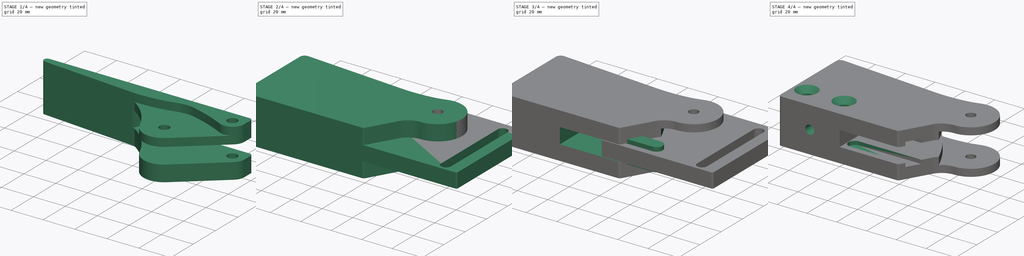
[diagram: build sequence overview — one tinted view per stage of 4, left to right]
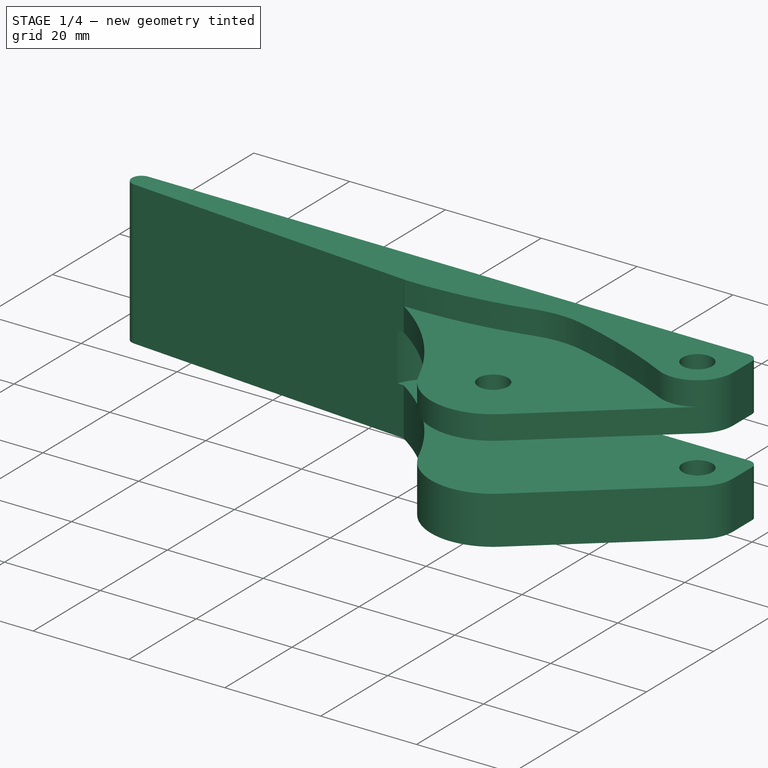
[diagram: stage 1 of 4 — iso view after this stage's code; geometry added in this stage tinted green]
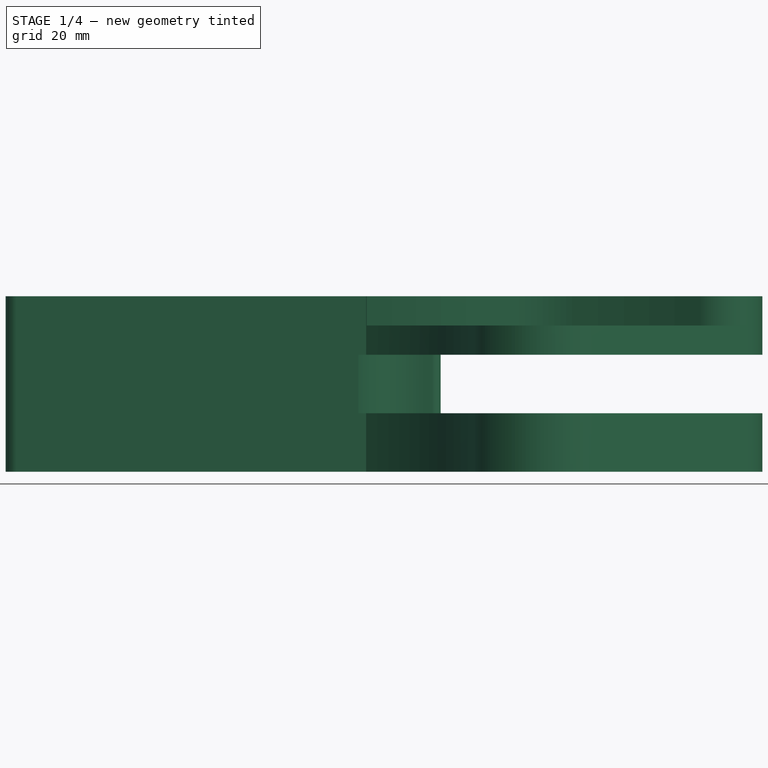
[diagram: stage 1 of 4 — front view after this stage's code; geometry added in this stage tinted green]
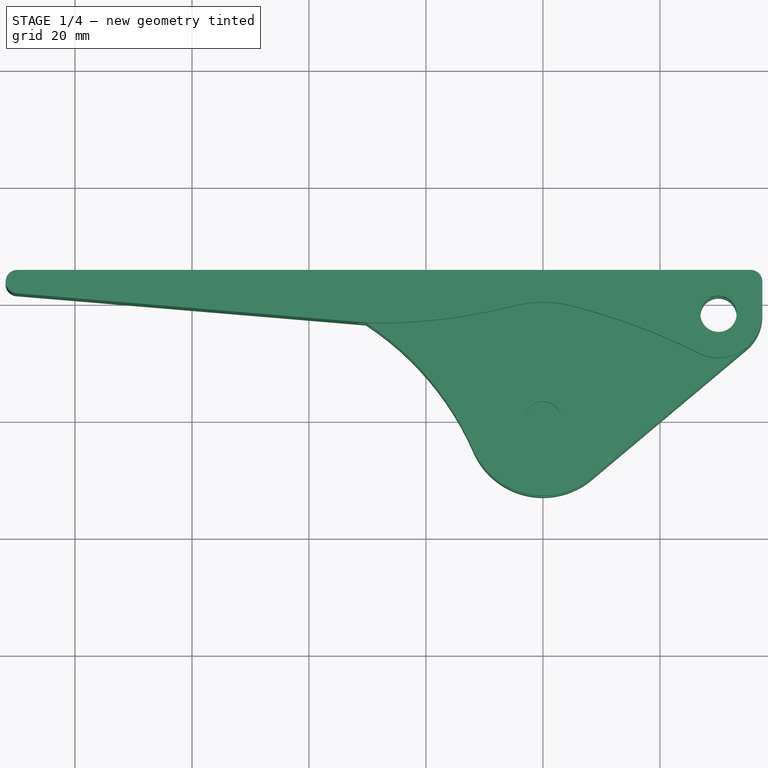
[diagram: stage 1 of 4 — top view after this stage's code; geometry added in this stage tinted green]
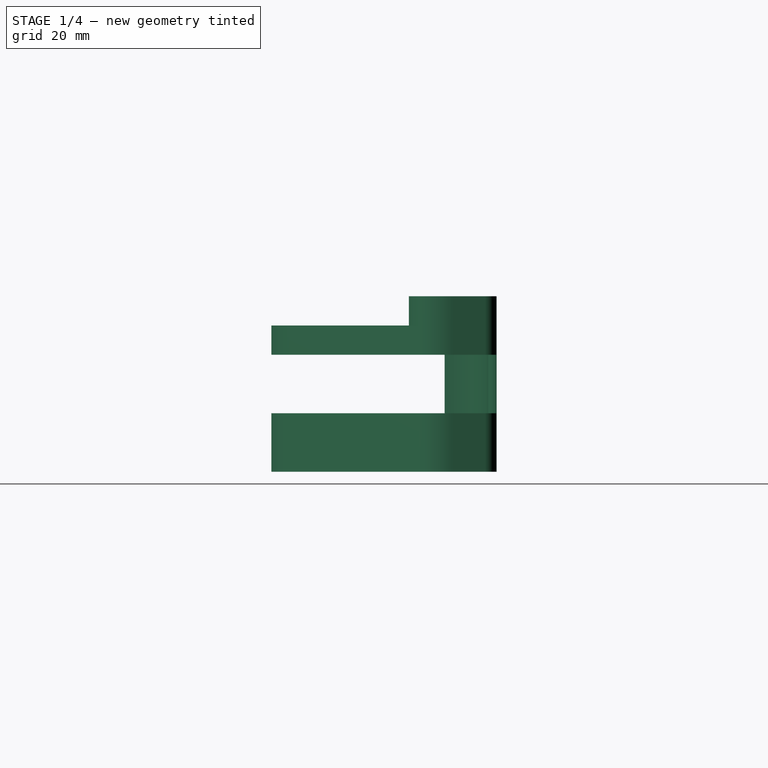
[diagram: stage 1 of 4 — right view after this stage's code; geometry added in this stage tinted green]
FCSTD DOCUMENT  (FreeCAD 0.22R37898 (Git))
Label: direct lever v5
License: All rights reserved
LicenseURL: http://en.wikipedia.org/wiki/All_rights_reserved
objects: Sketcher::SketchObject×13, PartDesign::Pocket×5, PartDesign::Pad×4, PartDesign::Hole×4, PartDesign::SubShapeBinder×3, PartDesign::Body×3, PartDesign::Mirrored×1
note: 46 computed .brp shape members not serialized (recipe doc carries the construction recipe); baked Part::Feature solids carry a one-line shape summary decoded from their .brp

FEATURE [Sketcher::SketchObject] Sketch  label="Master"
  AttachmentSupport = -> [XY_Plane]
  FullyConstrained = true
  MapMode = 5
  expr: .Constraints.slot_length = .Constraints.pin_distance + .Constraints.anchor_offset_y
  expr: .Constraints.slot_top = .Constraints.anchor_y + .Constraints.anchor_offset_y
  sketch-geometry (5):
    g0: LineSegment StartX=-89.9833 StartY=58 StartZ=0 EndX=30.0167 EndY=58 EndZ=0
    g1: Circle CenterX=30.0167 CenterY=58 CenterZ=0 NormalX=0 NormalY=0 NormalZ=1 AngleXU=0 Radius=3.1
    g2: Circle CenterX=0 CenterY=40 CenterZ=0 NormalX=0 NormalY=0 NormalZ=1 AngleXU=0 Radius=3.1
    g3: LineSegment StartX=30.0167 StartY=58 StartZ=0 EndX=30.0167 EndY=5 EndZ=0
    g4: LineSegment StartX=0 StartY=58 StartZ=0 EndX=0 EndY=40 EndZ=0
  constraints (18):
    c: Distance(g2,g0) = 35  'pin_distance'
    c: Diameter(g2) = 6.2
    c: DistanceY(g-1,g2) = 40  'anchor_y'
    c: Diameter(g1) = 6.2
    c: PointOnObject(g1,g3)
    c: PointOnObject(g4,g0)
    c: Coincident(g4,g2)
    c: Perpendicular(g0,g4)
    c: Coincident(g1,g0)
    c: Distance(g4) = 18  'anchor_offset_y'
    c: PointOnObject(g2,g-2)
    c: Distance(g0) = 120  'lever_length'
    c: DistanceY(g-1,g3) = 58  'slot_top'
    c: DistanceY(g3,g3) = 53  'slot_length'
    c: Vertical(g3)
    c: Angle(g0,g-1) = 3e-16  'lever_angle'
    c: DistanceY(g-1,g0) = 58  'pin_y'
    c: Horizontal(g0)
FEATURE [Sketcher::SketchObject] Sketch001  label="Lever sketch"
  AttachmentSupport = -> [XY_Plane]
  FullyConstrained = true
  MapMode = 5
  expr: .Constraints.top_angle = <<Master>>.Constraints.lever_angle
  expr: Constraints[16] = <<Master>>.Constraints.pin_distance
  expr: Constraints[17] = <<Master>>.Constraints.lever_length
  expr: Constraints[20] = <<Master>>.Constraints.anchor_y
  expr: Constraints[21] = <<Master>>.Constraints.pin_y
  sketch-geometry (13):
    g0: ArcOfCircle CenterX=30.0167 CenterY=58 CenterZ=0 NormalX=0 NormalY=0 NormalZ=1 AngleXU=0 Radius=7.5 StartAngle=5.41036 EndAngle=6.28319
    g1: LineSegment StartX=34.8366 StartY=52.2539 StartZ=0 EndX=8.35464 EndY=30.0401 EndZ=0
    g2: LineSegment StartX=35.5167 StartY=65.5 StartZ=0 EndX=-89.8572 EndY=65.5 EndZ=0
    g3: ArcOfCircle CenterX=-89.8572 CenterY=63.5 CenterZ=0 NormalX=0 NormalY=0 NormalZ=1 AngleXU=0 Radius=2 StartAngle=1.5708 EndAngle=4.62884
    g4: ArcOfCircle CenterX=0 CenterY=40 CenterZ=0 NormalX=0 NormalY=0 NormalZ=1 AngleXU=0 Radius=13 StartAngle=3.55441 EndAngle=5.41036
    g5: ArcOfCircle CenterX=-57.7076 CenterY=14.7248 CenterZ=0 NormalX=0 NormalY=0 NormalZ=1 AngleXU=0 Radius=50 StartAngle=0.41282 EndAngle=0.989051
    g6: LineSegment StartX=-30.2334 StartY=56.5 StartZ=0 EndX=-90.0241 EndY=61.507 EndZ=0
    g7: LineSegment StartX=0 StartY=40 StartZ=0 EndX=30.0167 EndY=58 EndZ=0
    g8: Circle CenterX=30.0167 CenterY=58 CenterZ=0 NormalX=0 NormalY=0 NormalZ=1 AngleXU=0 Radius=3.1
    g9: LineSegment StartX=-30.2334 StartY=65.5 StartZ=0 EndX=-30.2334 EndY=56.5 EndZ=0
    g10: LineSegment StartX=-11.9079 StartY=65.5 StartZ=0 EndX=-11.9079 EndY=34.7845 EndZ=0
    g11: ArcOfCircle CenterX=35.5167 CenterY=63.5 CenterZ=0 NormalX=0 NormalY=0 NormalZ=1 AngleXU=0 Radius=2 StartAngle=0 EndAngle=1.5708
    g12: LineSegment StartX=37.5167 StartY=63.5 StartZ=0 EndX=37.5167 EndY=58 EndZ=0
  constraints (34):
    c: Tangent(g6,g3) = 1.5708
    c: Tangent(g3,g2) = -1.5708
    c: Tangent(g5,g4) = 1.5708
    c: Tangent(g4,g1) = 1.5708
    c: Tangent(g1,g0) = 1.5708
    c: Radius(g3) = 2
    c: Coincident(g7,g0)
    c: Coincident(g8,g0)
    c: Diameter(g0) = 15  'tip_diameter'
    c: Coincident(g9,g5)
    c: Coincident(g10,g4)
    c: Parallel(g10,g9)
    c: PointOnObject(g9,g2)
    c: Distance(g9) = 9
    c: Perpendicular(g2,g9)
    c: PointOnObject(g10,g2)
    c: Distance(g7) = 35
    c: Distance(g3,g0) = 120
    c: Diameter(g8) = 6.2
    c: PointOnObject(g7,g-2)
    c: Distance(g-1,g7) = 40
    c: DistanceY(g-1,g0) = 58
    c: Angle(g2,g-1) = 3e-16  'top_angle'
    c: Distance(g6) = 60
    c: Tangent(g11,g2) = -1.5708
    c: Tangent(g12,g0) = 1.5708
    c: Tangent(g12,g11) = 1.5708
    c: Radius(g11) = 2
    c: Perpendicular(g12,g2)
    c: Distance(g12) = 5.5
    c: Coincident(g4,g7)
    c: Radius(g4) = 13
    c: Radius(g5) = 50
    c: Coincident(g6,g5)
FEATURE [PartDesign::Pad] Pad  label="Lever001"
  Direction = (0,0,1)
  Length = 30
  Length2 = 10
  Midplane = true
  Profile = -> Sketch001
  ReferenceAxis = -> Sketch001 [N_Axis]
  Suppressed = false
  Type = 0
FEATURE [Sketcher::SketchObject] Sketch003  label="Carrier pocket sketch"
  AttachmentSupport = -> [XY_Plane]
  ExternalGeometry = -> [Sketch001]
  FullyConstrained = true
  MapMode = 5
  expr: .Constraints.top_length = <<Master>>.Constraints.pin_distance + 20 mm
  expr: Constraints[10] = <<Lever sketch>>.Constraints.top_angle
  sketch-geometry (11):
    g0: LineSegment StartX=-32.4833 StartY=20.5 StartZ=0 EndX=35.5167 EndY=20.5 EndZ=0
    g1: LineSegment StartX=37.5167 StartY=22.5 StartZ=0 EndX=37.5167 EndY=65.5 EndZ=0
    g2: LineSegment StartX=37.5167 StartY=65.5 StartZ=0 EndX=-17.4833 EndY=65.5 EndZ=0
    g3: ArcOfCircle CenterX=35.5167 CenterY=22.5 CenterZ=0 NormalX=0 NormalY=0 NormalZ=1 AngleXU=0 Radius=2 StartAngle=4.71239 EndAngle=6.28319
    g4: GeomPoint X=37.5167 Y=20.5 Z=0
    g5: GeomPoint X=37.5167 Y=65.5 Z=0
    g6: LineSegment StartX=-32.4833 StartY=20.5 StartZ=0 EndX=-32.4833 EndY=52 EndZ=0
    g7: GeomPoint X=-32.4833 Y=65.5 Z=0
    g8: ArcOfCircle CenterX=-18.9833 CenterY=65.5 CenterZ=0 NormalX=0 NormalY=0 NormalZ=1 AngleXU=0 Radius=1.5 StartAngle=4.71239 EndAngle=6.28319
    g9: LineSegment StartX=-18.9833 StartY=64 StartZ=0 EndX=-20.4833 EndY=64 EndZ=0
    g10: ArcOfCircle CenterX=-20.4833 CenterY=52 CenterZ=0 NormalX=0 NormalY=0 NormalZ=1 AngleXU=0 Radius=12 StartAngle=1.5708 EndAngle=3.14159
  constraints (29):
    c: Tangent(g0,g3) = -1.5708
    c: Tangent(g1,g3) = -1.5708
    c: PointOnObject(g4,g0)
    c: PointOnObject(g4,g1)
    c: Parallel(g0,g2)
    c: PointOnObject(g5,g1)
    c: PointOnObject(g5,g2)
    c: Distance(g5,g7) = 70  'length'
    c: Coincident(g6,g0)
    c: Perpendicular(g2,g1)
    c: Angle(g0,g-1) = 3e-16
    c: Coincident(g1,g2)
    c: Distance(g5,g4) = 45
    c: Radius(g3) = 2
    c: PointOnObject(g7,g2)
    c: PointOnObject(g7,g6)
    c: Distance(g5,g2) = 55  'top_length'
    c: Coincident(g8,g2)
    c: Perpendicular(g8,g2)
    c: Radius(g8) = 1.5
    c: Angle(g8) = 1.5708
    c: Coincident(g9,g8)
    c: Parallel(g9,g2)
    c: Tangent(g10,g9) = -1.5708
    c: Perpendicular(g6,g0)
    c: Tangent(g10,g6) = 1.5708
    c: Radius(g10) = 12
    c: Horizontal(g5,g-3)
    c: Vertical(g5,g-3)
FEATURE [PartDesign::Pocket] Pocket  label="Carrier pocket"
  BaseFeature = -> Pad
  Direction = (0,0,-1)
  Length = 10
  Length2 = 5
  Midplane = true
  Profile = -> Sketch003
  ReferenceAxis = -> Sketch003 [N_Axis]
  Suppressed = false
  Type = 0
FEATURE [Sketcher::SketchObject] Sketch004  label="Axis sketch"
  AttachmentOffset = pos=(0,0,15) rot=(0,0,1;0rad)
  AttachmentSupport = -> [XY_Plane]
  FullyConstrained = true
  MapMode = 5
  Placement = pos=(0,0,15) rot=(0,0,1;0rad)
  expr: .AttachmentOffset.Base.z = <<Lever001>>.Length / 2
  expr: Constraints[1] = <<Master>>.Constraints.anchor_y
  sketch-geometry (1):
    g0: Circle CenterX=0 CenterY=40 CenterZ=0 NormalX=0 NormalY=0 NormalZ=1 AngleXU=0 Radius=3.1
  constraints (3):
    c: PointOnObject(g0,g-2)
    c: DistanceY(g-1,g0) = 40
    c: Diameter(g0) = 6.2
FEATURE [PartDesign::Hole] Hole  label="Axis hole"
  BaseFeature = -> Pocket
  CustomThreadClearance = 0
  Depth = 9
  DepthType = 0
  Diameter = 6.2
  DrillForDepth = false
  DrillPoint = 0
  DrillPointAngle = 118
  HoleCutCountersinkAngle = 90
  HoleCutCustomValues = false
  HoleCutDepth = 0
  HoleCutDiameter = 6.1
  HoleCutType = 0
  ModelThread = false
  Profile = -> Sketch004
  Suppressed = false
  Tapered = false
  TaperedAngle = 90
  ThreadClass = 0
  ThreadDepth = 9
  ThreadDepthType = 0
  ThreadDirection = 0
  ThreadFit = 0
  ThreadSize = 0
  ThreadType = 0
  Threaded = false
  UseCustomThreadClearance = false
  expr: Depth = <<Lever001>>.Length / 2 - <<Carrier pocket>>.Length / 2 - 1 mm
FEATURE [Sketcher::SketchObject] Sketch007
  AttachmentOffset = pos=(0,0,15) rot=(0,0,1;0rad)
  AttachmentSupport = -> [XY_Plane]
  ExternalGeometry = -> [Sketch001]
  FullyConstrained = true
  MapMode = 5
  Placement = pos=(0,0,15) rot=(0,0,1;0rad)
  expr: .AttachmentOffset.Base.z = <<Lever001>>.Length / 2
  expr: Constraints[14] = <<Master>>.Constraints.anchor_y
  expr: Constraints[15] = <<Master>>.Constraints.pin_distance
  expr: Constraints[3] = <<Master>>.Constraints.pin_y
  expr: Constraints[6] = <<Lever sketch>>.Constraints.top_angle
  sketch-geometry (9):
    g0: ArcOfCircle CenterX=30.0167 CenterY=58 CenterZ=0 NormalX=0 NormalY=0 NormalZ=1 AngleXU=0 Radius=7.5 StartAngle=4.24937 EndAngle=6.28319
    g1: LineSegment StartX=37.5167 StartY=58 StartZ=0 EndX=37.5167 EndY=20.5 EndZ=0
    g2: LineSegment StartX=37.5167 StartY=20.5 StartZ=0 EndX=-32.4833 EndY=20.5 EndZ=0
    g3: LineSegment StartX=-32.4833 StartY=20.5 StartZ=0 EndX=-32.4833 EndY=56.5 EndZ=0
    g4: ArcOfCircle CenterX=-28.5129 CenterY=151.666 CenterZ=0 NormalX=0 NormalY=0 NormalZ=1 AngleXU=0 Radius=95.2483 StartAngle=4.67069 EndAngle=4.96239
    g5: LineSegment StartX=30.0167 StartY=58 StartZ=0 EndX=0 EndY=40 EndZ=0
    g6: LineSegment StartX=0 StartY=40 StartZ=0 EndX=-32.4833 EndY=56.5 EndZ=0
    g7: ArcOfCircle CenterX=0 CenterY=40 CenterZ=0 NormalX=0 NormalY=0 NormalZ=1 AngleXU=0 Radius=20 StartAngle=1.3208 EndAngle=1.8208
    g8: ArcOfCircle CenterX=-22.0197 CenterY=-46.2362 CenterZ=0 NormalX=0 NormalY=0 NormalZ=1 AngleXU=0 Radius=109.003 StartAngle=1.10778 EndAngle=1.3208
  constraints (24):
    c: Coincident(g0,g1)
    c: Coincident(g1,g2)
    c: Coincident(g2,g3)
    c: DistanceY(g-1,g0) = 58
    c: Perpendicular(g1,g2)
    c: Perpendicular(g3,g2)
    c: Angle(g2,g-1) = 3e-16
    c: Coincident(g5,g0)
    c: Coincident(g6,g3)
    c: Coincident(g0,g-3)
    c: Tangent(g7,g4) = 1.5708
    c: Radius(g7) = 20
    c: Coincident(g7,g5)
    c: Coincident(g5,g6)
    c: DistanceY(g-1,g5) = 40
    c: Distance(g5) = 35
    c: Tangent(g8,g0) = 1.5708
    c: Tangent(g8,g7) = -1.5708
    c: DistanceX(g2,g2) = 70
    c: Coincident(g4,g3)
    c: DistanceY(g3,g3) = 36
    c: DistanceY(g1,g1) = 37.5
    c: Symmetric(g7,g4,g-2)
    c: Distance(g7) = 10
FEATURE [PartDesign::Pocket] Pocket002
  BaseFeature = -> Hole
  Direction = (0,0,-1)
  Length = 5
  Length2 = 5
  Profile = -> Sketch007
  ReferenceAxis = -> Sketch007 [N_Axis]
  Suppressed = false
  Type = 0
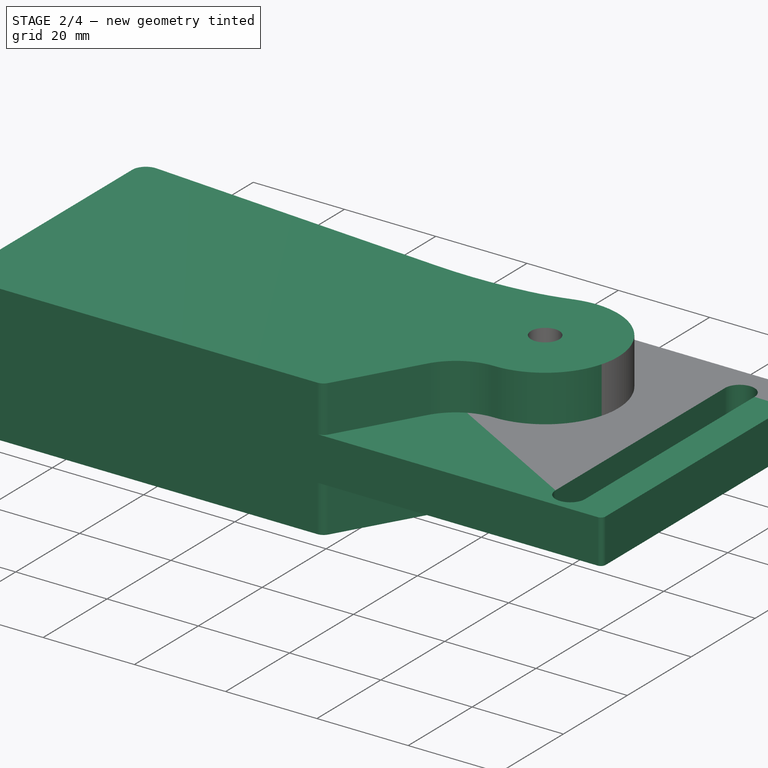
[diagram: stage 2 of 4 — iso view after this stage's code; geometry added in this stage tinted green]
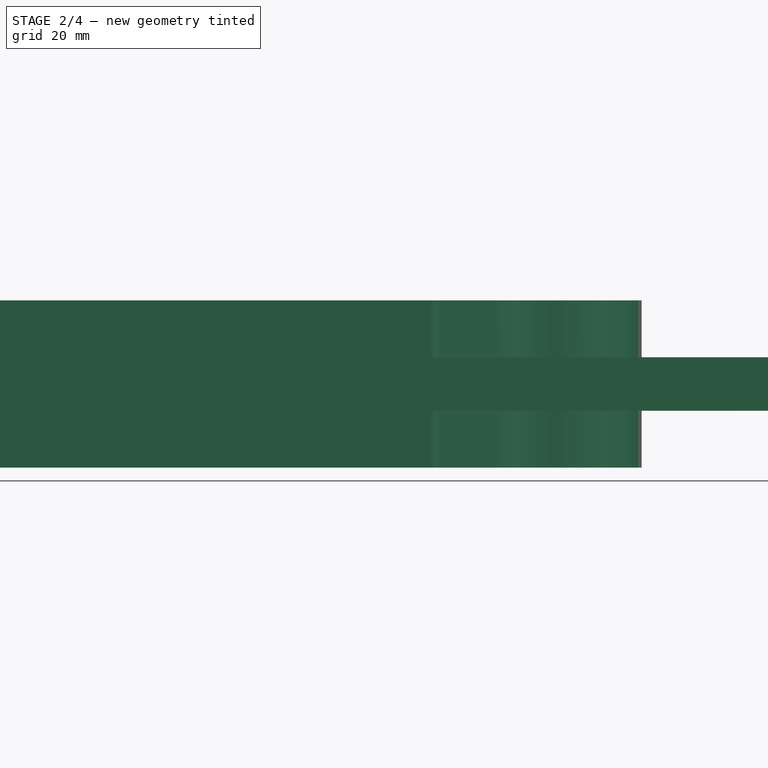
[diagram: stage 2 of 4 — front view after this stage's code; geometry added in this stage tinted green]
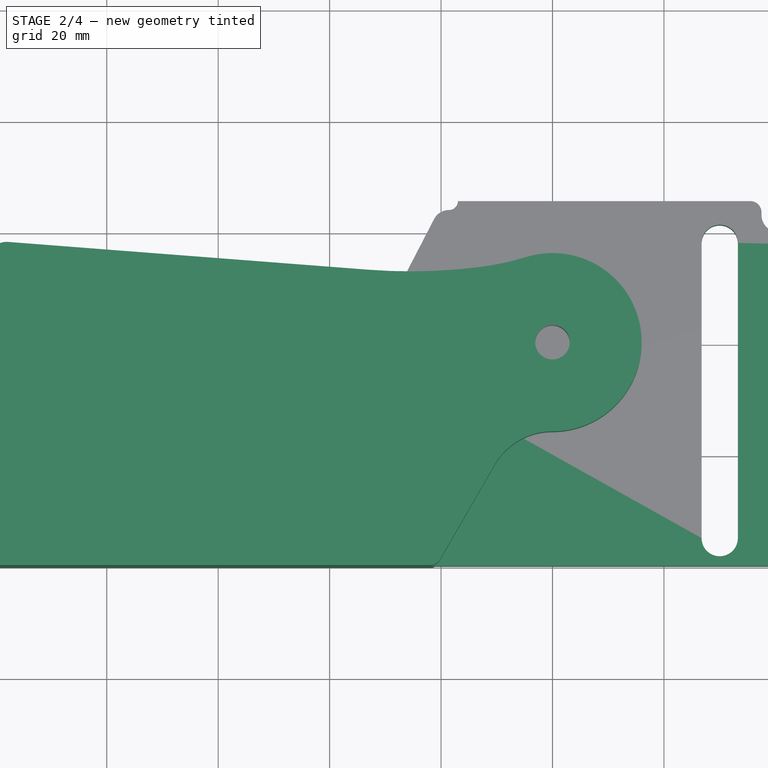
[diagram: stage 2 of 4 — top view after this stage's code; geometry added in this stage tinted green]
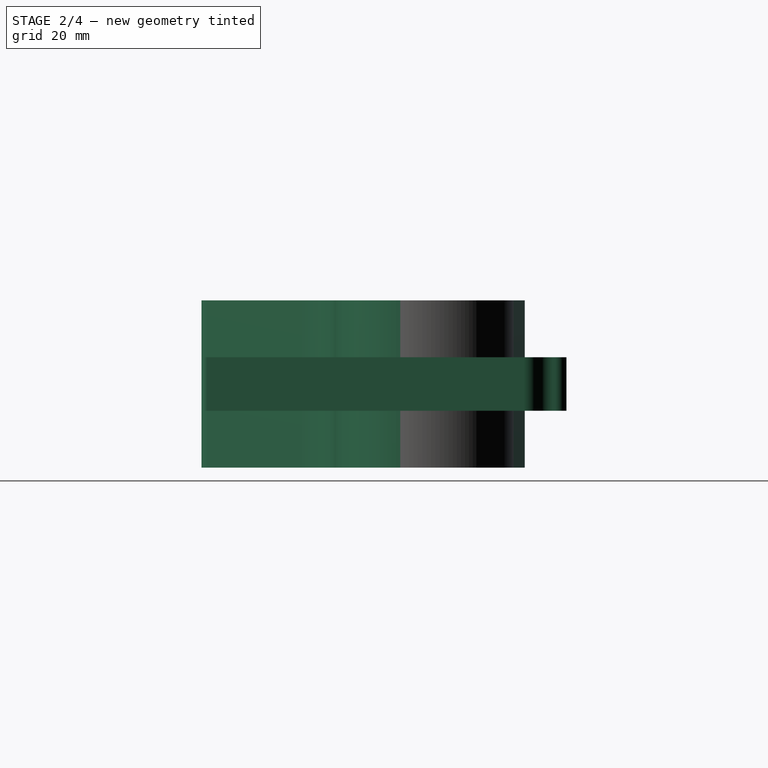
[diagram: stage 2 of 4 — right view after this stage's code; geometry added in this stage tinted green]
FEATURE [PartDesign::SubShapeBinder] Binder
  BindCopyOnChange = 0
  BindMode = 0
  ClaimChildren = false
  Context = -> Body001 [Binder.]
  Fuse = false
  MakeFace = true
  OffsetFill = false
  OffsetIntersection = false
  OffsetJoinType = 0
  OffsetOpenResult = false
  PartialLoad = false
  Relative = true
  Support = -> [Body[Sketch.]]
  _Version = 2
FEATURE [Sketcher::SketchObject] Sketch002
  AttachmentSupport = -> [XY_Plane001]
  ExternalGeometry = -> [Binder]
  FullyConstrained = true
  MapMode = 5
  expr: Constraints[20] = <<Master>>.Constraints.slot_length
  expr: Constraints[22] = <<Master>>.Constraints.pin_y + <<Lever sketch>>.Constraints.tip_diameter / 2
  expr: Constraints[23] = <<Lever sketch>>.Constraints.tip_diameter / 2
  expr: Constraints[49] = <<Carrier pocket sketch>>.Constraints.top_length - 0.5 mm
  sketch-geometry (20):
    g0: LineSegment StartX=-32.4833 StartY=38.145 StartZ=0 EndX=-32.4833 EndY=0 EndZ=0
    g1: LineSegment StartX=-32.4833 StartY=0 StartZ=0 EndX=39.5167 EndY=0 EndZ=0
    g2: LineSegment StartX=37.5167 StartY=63 StartZ=0 EndX=37.5167 EndY=63.5 EndZ=0
    g3: LineSegment StartX=35.5167 StartY=65.5 StartZ=0 EndX=-16.9833 EndY=65.5 EndZ=0
    g4: ArcOfCircle CenterX=39.5167 CenterY=1 CenterZ=0 NormalX=0 NormalY=0 NormalZ=1 AngleXU=0 Radius=1 StartAngle=4.71239 EndAngle=6.28319
    g5: ArcOfCircle CenterX=35.5167 CenterY=63.5 CenterZ=0 NormalX=0 NormalY=0 NormalZ=1 AngleXU=0 Radius=2 StartAngle=1.6e-15 EndAngle=1.5708
    g6: GeomPoint X=-32.4833 Y=65.5 Z=0
    g7: GeomPoint X=37.5167 Y=0 Z=0
    g8: ArcOfCircle CenterX=30.0167 CenterY=58 CenterZ=0 NormalX=0 NormalY=0 NormalZ=1 AngleXU=0 Radius=3.25 StartAngle=8e-16 EndAngle=3.14159
    g9: ArcOfCircle CenterX=30.0167 CenterY=5 CenterZ=0 NormalX=0 NormalY=0 NormalZ=1 AngleXU=0 Radius=3.25 StartAngle=3.14159 EndAngle=6.28319
    g10: LineSegment StartX=33.2667 StartY=58 StartZ=0 EndX=33.2667 EndY=5 EndZ=0
    g11: LineSegment StartX=26.7667 StartY=58 StartZ=0 EndX=26.7667 EndY=5 EndZ=0
    g12: ArcOfCircle CenterX=-18.5833 CenterY=65.5 CenterZ=0 NormalX=0 NormalY=0 NormalZ=1 AngleXU=0 Radius=1.6 StartAngle=4.71239 EndAngle=6.28319
    g13: ArcOfCircle CenterX=-18.5833 CenterY=60.9 CenterZ=0 NormalX=0 NormalY=0 NormalZ=1 AngleXU=0 Radius=3 StartAngle=1.5708 EndAngle=2.6638
    g14: LineSegment StartX=-31.3635 StartY=42.7432 StartZ=0 EndX=-21.2474 EndY=62.2795 EndZ=0
    g15: ArcOfCircle CenterX=-22.4833 CenterY=38.145 CenterZ=0 NormalX=0 NormalY=0 NormalZ=1 AngleXU=0 Radius=10 StartAngle=2.6638 EndAngle=3.14159
    g16: GeomPoint X=-32.4833 Y=40.5805 Z=0
    g17: LineSegment StartX=40.5167 StartY=1 StartZ=0 EndX=40.5167 EndY=57.8038 EndZ=0
    g18: ArcOfCircle CenterX=37.5167 CenterY=57.8038 CenterZ=0 NormalX=0 NormalY=0 NormalZ=1 AngleXU=0 Radius=3 StartAngle=-9e-16 EndAngle=1.0472
    g19: ArcOfCircle CenterX=40.5167 CenterY=63 CenterZ=0 NormalX=0 NormalY=0 NormalZ=1 AngleXU=0 Radius=3 StartAngle=3.14159 EndAngle=4.18879
  constraints (51):
    c: Tangent(g1,g4) = -1.5708
    c: Tangent(g2,g5) = -1.5708
    c: Tangent(g3,g5) = -1.5708
    c: Vertical(g0)
    c: Vertical(g2)
    c: Horizontal(g1)
    c: Horizontal(g3)
    c: PointOnObject(g6,g0)
    c: PointOnObject(g6,g3)
    c: PointOnObject(g7,g1)
    c: PointOnObject(g7,g2)
    c: Radius(g4) = 1
    c: PointOnObject(g1,g-1)
    c: DistanceX(g0,g2) = 70
    c: Tangent(g8,g10) = 1.5708
    c: Tangent(g8,g11) = -1.5708
    c: Tangent(g9,g10) = 1.5708
    c: Tangent(g9,g11) = -1.5708
    c: Equal(g8,g9)
    c: Vertical(g10)
    c: DistanceY(g9,g8) = 53
    c: Diameter(g9) = 6.5
    c: DistanceY(g1,g3) = 65.5
    c: DistanceX(g8,g2) = 7.5
    c: Radius(g5) = 2
    c: Coincident(g1,g0)
    c: DistanceX(g0,g-1) = 32.4833  'x_position'
    c: Coincident(g12,g3)
    c: Tangent(g13,g12) = 1.5708
    c: Perpendicular(g12,g3)
    c: Radius(g12) = 1.6
    c: Angle(g12) = 1.5708
    c: Tangent(g14,g13) = 1.5708
    c: Radius(g13) = 3
    c: PointOnObject(g16,g0)
    c: PointOnObject(g16,g14)
    c: Tangent(g0,g15) = -1.5708
    c: Tangent(g14,g15) = 1.5708
    c: Radius(g15) = 10
    c: Vertical(g17)
    c: Tangent(g17,g4) = -1.5708
    c: Tangent(g18,g17) = -1.5708
    c: Tangent(g19,g18) = 1.5708
    c: Tangent(g19,g2) = 1.5708
    c: Equal(g18,g19)
    c: DistanceX(g7,g4) = 3
    c: DistanceY(g2,g3) = 2.5
    c: Radius(g19) = 3
    c: Distance(g14) = 22
    c: DistanceX(g3,g2) = 54.5
    c: Coincident(g8,g-3)
FEATURE [PartDesign::Pad] Pad001
  Direction = (0,0,1)
  Length = 9.6
  Length2 = 10
  Midplane = true
  Profile = -> Sketch002
  ReferenceAxis = -> Sketch002 [N_Axis]
  Suppressed = false
  Type = 0
  expr: Length = <<Carrier pocket>>.Length - 0.4 mm
FEATURE [Sketcher::SketchObject] Sketch005
  AttachmentSupport = -> [XY_Plane002]
  FullyConstrained = true
  MapMode = 5
  expr: Constraints[16] = <<Master>>.Constraints.anchor_y
  sketch-geometry (12):
    g0: LineSegment StartX=-101 StartY=2 StartZ=0 EndX=-101 EndY=55.0089 EndZ=0
    g1: ArcOfCircle CenterX=-98 CenterY=55.0089 CenterZ=0 NormalX=0 NormalY=0 NormalZ=1 AngleXU=0 Radius=3 StartAngle=1.4938 EndAngle=3.14159
    g2: LineSegment StartX=-97.7692 StartY=58 StartZ=0 EndX=-32.9618 EndY=53 EndZ=0
    g3: ArcOfCircle CenterX=-19.2904 CenterY=102.706 CenterZ=0 NormalX=0 NormalY=0 NormalZ=1 AngleXU=0 Radius=49.6064 StartAngle=4.83948 EndAngle=5.01083
    g4: ArcOfCircle CenterX=0 CenterY=40 CenterZ=0 NormalX=0 NormalY=0 NormalZ=1 AngleXU=0 Radius=16 StartAngle=4.71239 EndAngle=8.15242
    g5: ArcOfCircle CenterX=-21.9393 CenterY=2 CenterZ=0 NormalX=0 NormalY=0 NormalZ=1 AngleXU=0 Radius=2 StartAngle=4.71239 EndAngle=5.75959
    g6: LineSegment StartX=-21.9393 StartY=0 StartZ=0 EndX=-99 EndY=0 EndZ=0
    g7: ArcOfCircle CenterX=-99 CenterY=2 CenterZ=0 NormalX=0 NormalY=0 NormalZ=1 AngleXU=0 Radius=2 StartAngle=3.14159 EndAngle=4.71239
    g8: Circle CenterX=0 CenterY=40 CenterZ=0 NormalX=0 NormalY=0 NormalZ=1 AngleXU=0 Radius=3.1
    g9: ArcOfCircle CenterX=0 CenterY=12 CenterZ=0 NormalX=0 NormalY=0 NormalZ=1 AngleXU=0 Radius=12 StartAngle=1.5708 EndAngle=2.61799
    g10: LineSegment StartX=-10.3923 StartY=18 StartZ=0 EndX=-20.2073 EndY=1 EndZ=0
    g11: ArcOfCircle CenterX=-25.4237 CenterY=150.705 CenterZ=0 NormalX=0 NormalY=0 NormalZ=1 AngleXU=0 Radius=97.9958 StartAngle=4.63539 EndAngle=4.83948
  constraints (31):
    c: Vertical(g0)
    c: Tangent(g0,g1) = 1.5708
    c: Tangent(g3,g4) = 1.5708
    c: PointOnObject(g6,g-1)
    c: Tangent(g6,g7) = 1.5708
    c: Tangent(g5,g6) = 1.5708
    c: Tangent(g1,g2) = 1.5708
    c: Tangent(g7,g0) = 1.5708
    c: Equal(g7,g5)
    c: Radius(g5) = 2
    c: DistanceX(g0,g-1) = 101
    c: DistanceY(g6,g1) = 58  'height'
    c: Radius(g1) = 3
    c: DistanceY(g-1,g2) = 53
    c: Radius(g4) = 16
    c: PointOnObject(g4,g-2)
    c: DistanceY(g-1,g4) = 40
    c: PointOnObject(g5,g-1)
    c: Coincident(g8,g4)
    c: Diameter(g8) = 6.2
    c: PointOnObject(g9,g-2)
    c: Tangent(g10,g5) = 1.5708
    c: Tangent(g10,g9) = -1.5708
    c: Angle(g10,g6) = 2.0944
    c: Tangent(g11,g2) = -1.5708
    c: DistanceY(g-1,g3) = 53.5
    c: Tangent(g11,g3) = -1.5708
    c: Distance(g11) = 20
    c: Tangent(g9,g4) = 1.5708
    c: Radius(g9) = 12
    c: Distance(g2) = 65
FEATURE [PartDesign::Pad] Pad002
  Direction = (0,0,1)
  Length = 30
  Length2 = 10
  Midplane = true
  Profile = -> Sketch005
  ReferenceAxis = -> Sketch005 [N_Axis]
  Suppressed = false
  Type = 0
  expr: Length = <<Lever001>>.Length
FEATURE [PartDesign::Mirrored] Mirrored
  BaseFeature = -> Pocket002
  MirrorPlane = -> XY_Plane
  Originals = -> [Hole,Pocket002]
  Suppressed = false
  TransformMode = 0
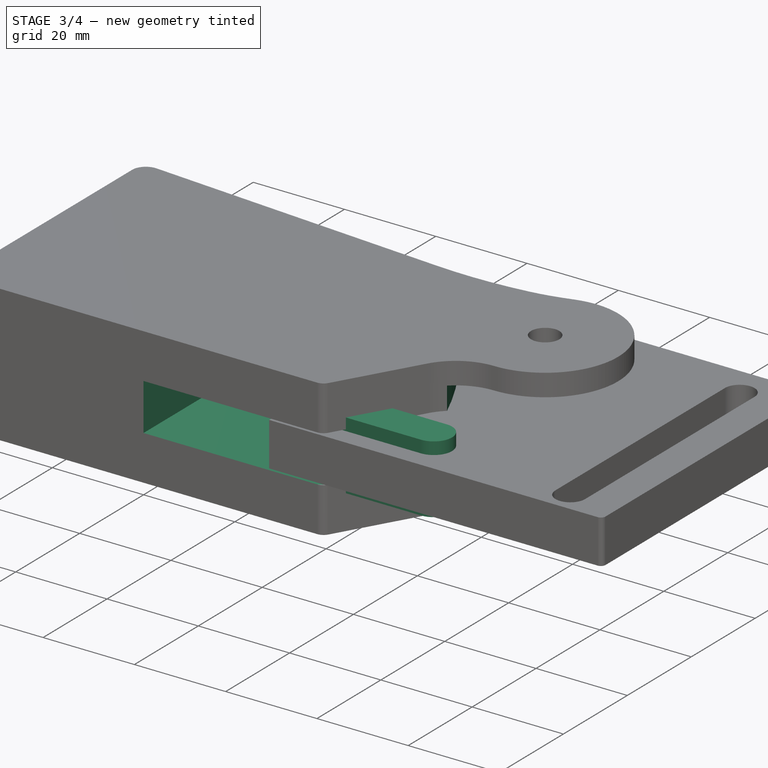
[diagram: stage 3 of 4 — iso view after this stage's code; geometry added in this stage tinted green]
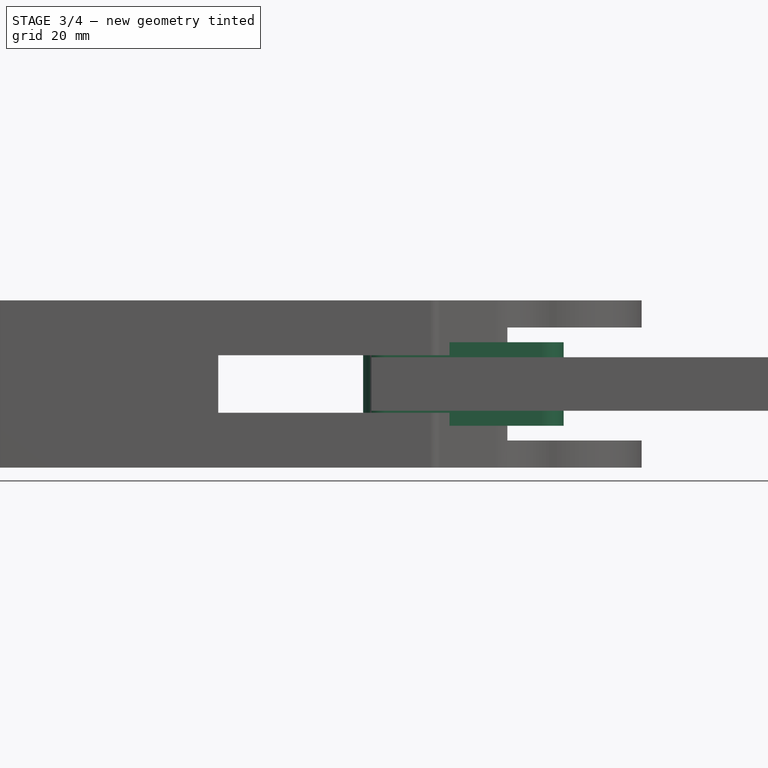
[diagram: stage 3 of 4 — front view after this stage's code; geometry added in this stage tinted green]
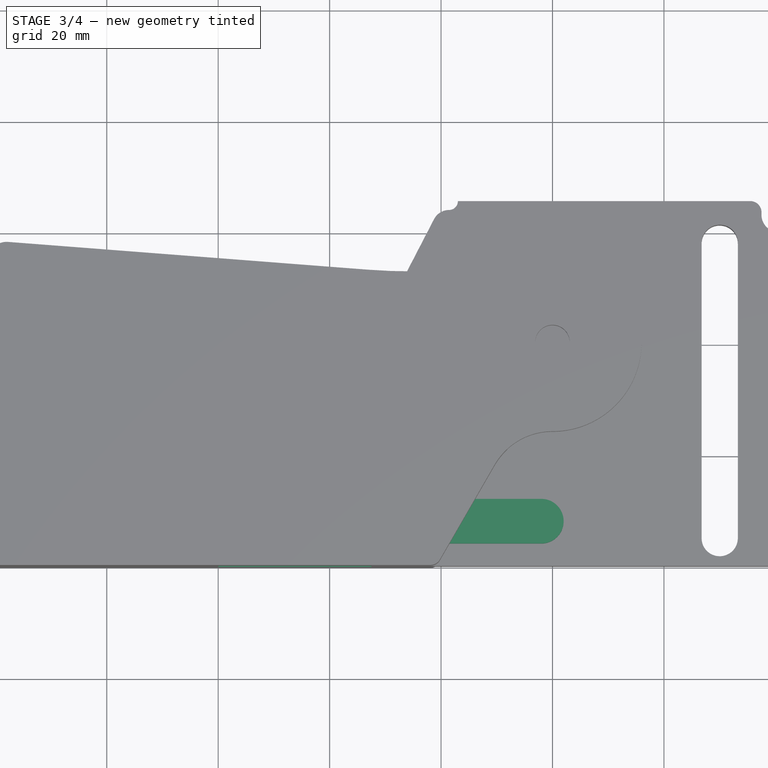
[diagram: stage 3 of 4 — top view after this stage's code; geometry added in this stage tinted green]
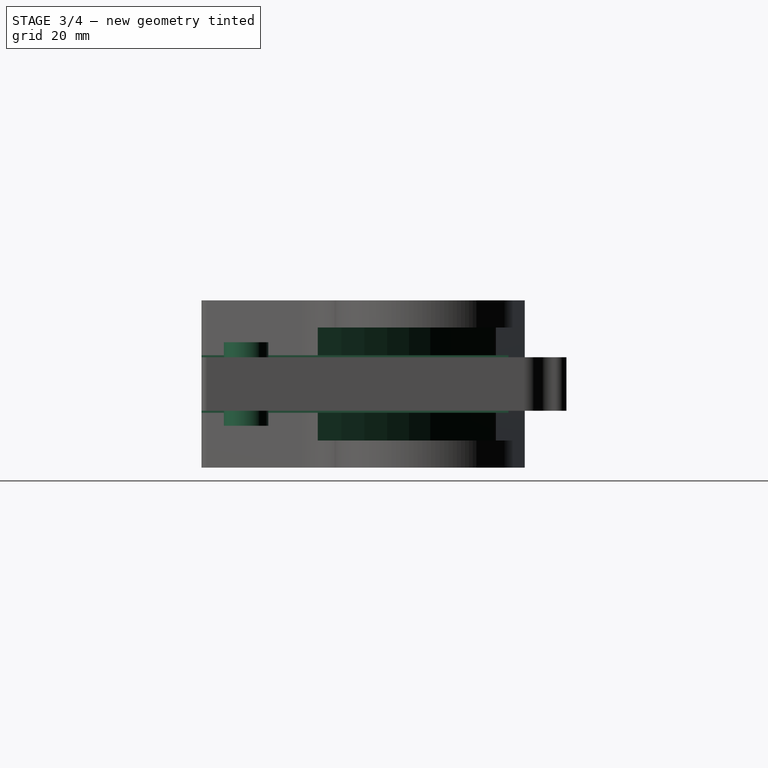
[diagram: stage 3 of 4 — right view after this stage's code; geometry added in this stage tinted green]
FEATURE [Sketcher::SketchObject] Sketch006
  AttachmentSupport = -> [XZ_Plane002]
  FullyConstrained = true
  MapMode = 5
  Placement = pos=(0,0,0) rot=(1,0,0;1.5708rad)
  expr: Constraints[10] = <<Carrier pocket>>.Length + 0.3 mm
  sketch-geometry (4):
    g0: LineSegment StartX=-60 StartY=5.15 StartZ=0 EndX=-60 EndY=-5.15 EndZ=0
    g1: LineSegment StartX=-60 StartY=-5.15 StartZ=0 EndX=50 EndY=-5.15 EndZ=0
    g2: LineSegment StartX=50 StartY=-5.15 StartZ=0 EndX=50 EndY=5.15 EndZ=0
    g3: LineSegment StartX=50 StartY=5.15 StartZ=0 EndX=-60 EndY=5.15 EndZ=0
  constraints (11):
    c: Coincident(g0,g1)
    c: Coincident(g1,g2)
    c: Coincident(g2,g3)
    c: Coincident(g3,g0)
    c: Vertical(g0)
    c: Horizontal(g1)
    c: Horizontal(g3)
    c: Symmetric(g2,g1,g-1)
    c: DistanceX(g-1,g1) = 50
    c: Distance(g1) = 110
    c: DistanceY(g2,g2) = 10.3
FEATURE [PartDesign::Pocket] Pocket001
  BaseFeature = -> Pad002
  Direction = (0,1,-2e-16)
  Length = 25
  Length2 = 5
  Profile = -> Sketch006
  ReferenceAxis = -> Sketch006 [N_Axis]
  Suppressed = false
  Type = 1
FEATURE [PartDesign::Body] Body  label="Lever"
  AllowCompound = false
  Group = -> [Sketch,Sketch001,Pad,Sketch003,Pocket,Sketch004,Hole,Sketch007,Pocket002,Mirrored]
  Origin = -> Origin
  Tip = -> Mirrored
FEATURE [Sketcher::SketchObject] Sketch010
  AttachmentOffset = pos=(0,0,-58) rot=(0,0,1;0rad)
  AttachmentSupport = -> [XZ_Plane002]
  FullyConstrained = true
  MapMode = 5
  Placement = pos=(0,58,-1.29e-14) rot=(1,0,0;1.5708rad)
  expr: .AttachmentOffset.Base.z = -<<Sketch005>>.Constraints.height
  sketch-geometry (1):
    g0: Circle CenterX=-80 CenterY=0 CenterZ=0 NormalX=0 NormalY=0 NormalZ=1 AngleXU=0 Radius=3.25
  constraints (3):
    c: PointOnObject(g0,g-1)
    c: Diameter(g0) = 6.5
    c: DistanceX(g0,g-1) = 80
FEATURE [Sketcher::SketchObject] Sketch011
  AttachmentSupport = -> [XY_Plane001]
  FullyConstrained = true
  MapMode = 5
  sketch-geometry (4):
    g0: ArcOfCircle CenterX=-30 CenterY=8 CenterZ=0 NormalX=0 NormalY=0 NormalZ=1 AngleXU=0 Radius=4 StartAngle=1.5708 EndAngle=4.71239
    g1: ArcOfCircle CenterX=-2 CenterY=8 CenterZ=0 NormalX=0 NormalY=0 NormalZ=1 AngleXU=0 Radius=4 StartAngle=4.71239 EndAngle=7.85398
    g2: LineSegment StartX=-30 StartY=12 StartZ=0 EndX=-2 EndY=12 EndZ=0
    g3: LineSegment StartX=-30 StartY=4 StartZ=0 EndX=-2 EndY=4 EndZ=0
  constraints (10):
    c: Tangent(g0,g2) = 1.5708
    c: Tangent(g0,g3) = -1.5708
    c: Tangent(g1,g2) = 1.5708
    c: Tangent(g1,g3) = -1.5708
    c: Equal(g0,g1)
    c: Horizontal(g2)
    c: Radius(g0) = 4
    c: DistanceX(g0,g1) = 28
    c: DistanceY(g-1,g1) = 8
    c: DistanceX(g1,g-1) = 2
FEATURE [PartDesign::Pad] Pad004
  BaseFeature = -> Pad001
  Direction = (0,0,1)
  Length = 15
  Length2 = 10
  Midplane = true
  Profile = -> Sketch011
  ReferenceAxis = -> Sketch011 [N_Axis]
  Suppressed = false
  Type = 0
FEATURE [PartDesign::Body] Body001  label="Carriage"
  AllowCompound = false
  Group = -> [Sketch002,Binder,Pad001,Sketch011,Pad004]
  Origin = -> Origin001
  Tip = -> Pad004
FEATURE [PartDesign::SubShapeBinder] Binder001
  BindCopyOnChange = 0
  BindMode = 0
  ClaimChildren = false
  Context = -> Body002 [Binder001.]
  Fuse = false
  MakeFace = true
  Offset = 0.15
  OffsetFill = false
  OffsetIntersection = false
  OffsetJoinType = 0
  OffsetOpenResult = false
  PartialLoad = false
  Relative = true
  Support = -> [Body001[Sketch011.]]
  _Version = 2
FEATURE [Sketcher::SketchObject] Sketch012  label="Guide lip sketch"
  AttachmentSupport = -> [XY_Plane002]
  FullyConstrained = false
  MapMode = 5
  sketch-geometry (4):
    g0: ArcOfCircle CenterX=-55.5 CenterY=8 CenterZ=0 NormalX=0 NormalY=0 NormalZ=1 AngleXU=0 Radius=4.15 StartAngle=1.5708 EndAngle=4.71239
    g1: ArcOfCircle CenterX=0 CenterY=8 CenterZ=0 NormalX=0 NormalY=0 NormalZ=1 AngleXU=0 Radius=4.15 StartAngle=4.71239 EndAngle=7.85398
    g2: LineSegment StartX=-55.5 StartY=12.15 StartZ=0 EndX=0 EndY=12.15 EndZ=0
    g3: LineSegment StartX=-55.5 StartY=3.85 StartZ=0 EndX=0 EndY=3.85 EndZ=0
  constraints (8):
    c: Tangent(g0,g2) = 1.5708
    c: Tangent(g0,g3) = -1.5708
    c: Tangent(g1,g2) = 1.5708
    c: Tangent(g1,g3) = -1.5708
    c: Equal(g0,g1)
    c: DistanceX(g3,g3) = 55.5
    c: Horizontal(g2)
    c: PointOnObject(g1,g-2)
FEATURE [Sketcher::SketchObject] Sketch013
  AttachmentOffset = pos=(0,0,15) rot=(0,0,1;0rad)
  AttachmentSupport = -> [XY_Plane002]
  ExternalGeometry = -> [Sketch010]
  FullyConstrained = false
  MapMode = 5
  Placement = pos=(0,0,15) rot=(0,0,1;0rad)
  expr: .AttachmentOffset.Base.z = <<Pad002>>.Length / 2
  sketch-geometry (3):
    g0: Circle CenterX=-92.5 CenterY=15 CenterZ=0 NormalX=0 NormalY=0 NormalZ=1 AngleXU=0 Radius=6
    g1: Circle CenterX=-67.5 CenterY=15 CenterZ=0 NormalX=0 NormalY=0 NormalZ=1 AngleXU=0 Radius=6
    g2: LineSegment StartX=-80 StartY=58 StartZ=0 EndX=-80 EndY=15 EndZ=0
  constraints (7):
    c: Equal(g0,g1)
    c: Radius(g0) = 6
    c: Horizontal(g0,g1)
    c: DistanceX(g0,g1) = 25
    c: DistanceY(g-1,g1) = 15
    c: Vertical(g2)
    c: Symmetric(g1,g0,g2)
FEATURE [PartDesign::SubShapeBinder] Binder002
  BindCopyOnChange = 0
  BindMode = 0
  ClaimChildren = false
  Context = -> Body002 [Binder002.]
  Fuse = false
  MakeFace = true
  OffsetFill = false
  OffsetIntersection = false
  OffsetJoinType = 0
  OffsetOpenResult = false
  PartialLoad = false
  Relative = true
  Support = -> [Body[Sketch007.]]
  _Version = 2
FEATURE [Sketcher::SketchObject] Sketch008
  AttachmentSupport = -> [XY_Plane002]
  ExternalGeometry = -> [Binder002]
  FullyConstrained = false
  MapMode = 5
  expr: Constraints[4] = <<Lever sketch>>.Constraints.top_angle
  sketch-geometry (8):
    g0: ArcOfCircle CenterX=0 CenterY=40 CenterZ=0 NormalX=0 NormalY=0 NormalZ=1 AngleXU=0 Radius=17.3971 StartAngle=0.643501 EndAngle=1.87611
    g1: ArcOfCircle CenterX=20 CenterY=55 CenterZ=0 NormalX=0 NormalY=0 NormalZ=1 AngleXU=0 Radius=7.60288 StartAngle=3.78509 EndAngle=5.33799
    g2: LineSegment StartX=24.4521 StartY=48.837 StartZ=0 EndX=24.4521 EndY=18.837 EndZ=0
    g3: LineSegment StartX=24.4521 StartY=18.837 StartZ=0 EndX=-7.26692 EndY=18.837 EndZ=0
    g4: ArcOfCircle CenterX=-26.2669 CenterY=123.343 CenterZ=0 NormalX=0 NormalY=0 NormalZ=1 AngleXU=0 Radius=69.9875 StartAngle=4.71239 EndAngle=5.0177
    g5: LineSegment StartX=-26.2669 StartY=53.3559 StartZ=0 EndX=-31.2669 EndY=53.3559 EndZ=0
    g6: ArcOfCircle CenterX=-100.1 CenterY=-18.3378 CenterZ=0 NormalX=0 NormalY=0 NormalZ=1 AngleXU=0 Radius=100 StartAngle=0.380891 EndAngle=0.775979
    g7: ArcOfCircle CenterX=-33.7229 CenterY=46.8009 CenterZ=0 NormalX=0 NormalY=0 NormalZ=1 AngleXU=0 Radius=7 StartAngle=0.775979 EndAngle=1.21231
  constraints (16):
    c: Tangent(g0,g1) = 1.5708
    c: Coincident(g1,g2)
    c: Coincident(g2,g3)
    c: PointOnObject(g0,g-2)
    c: Angle(g3,g-1) = 3e-16
    c: Tangent(g4,g0) = 1.5708
    c: DistanceX(g5,g3) = 24
    c: Coincident(g5,g4)
    c: Perpendicular(g2,g3)
    c: Coincident(g6,g3)
    c: Coincident(g7,g5)
    c: Tangent(g7,g6) = -1.5708
    c: Radius(g7) = 7
    c: Radius(g6) = 100
    c: Distance(g2) = 30
    c: Angle(g7) = 0.436332
FEATURE [PartDesign::Pocket] Pocket003
  BaseFeature = -> Pocket001
  Direction = (0,0,-1)
  Length = 20.3
  Length2 = 5
  Midplane = true
  Profile = -> Sketch008
  Suppressed = false
  Type = 0
  expr: Length = (<<Lever001>>.Length / 2 - <<Pocket002>>.Length) * 2 + 0.3 mm
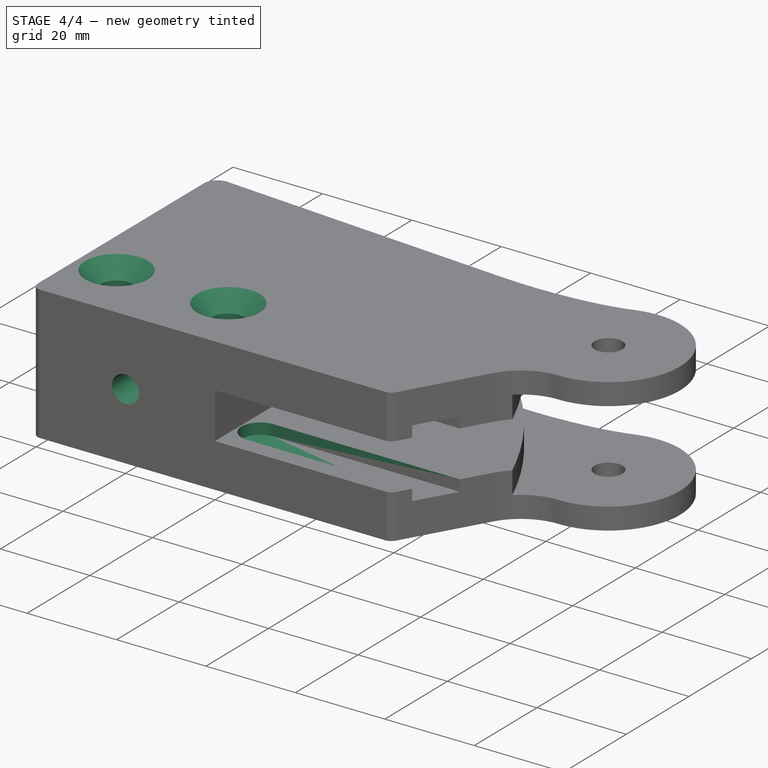
[diagram: stage 4 of 4 — iso view after this stage's code; geometry added in this stage tinted green]
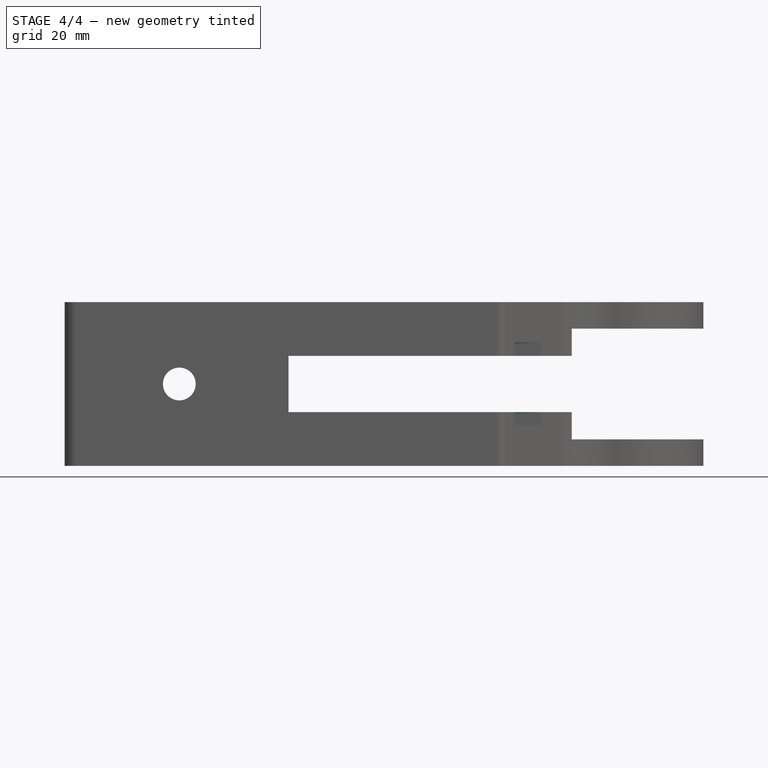
[diagram: stage 4 of 4 — front view after this stage's code; geometry added in this stage tinted green]
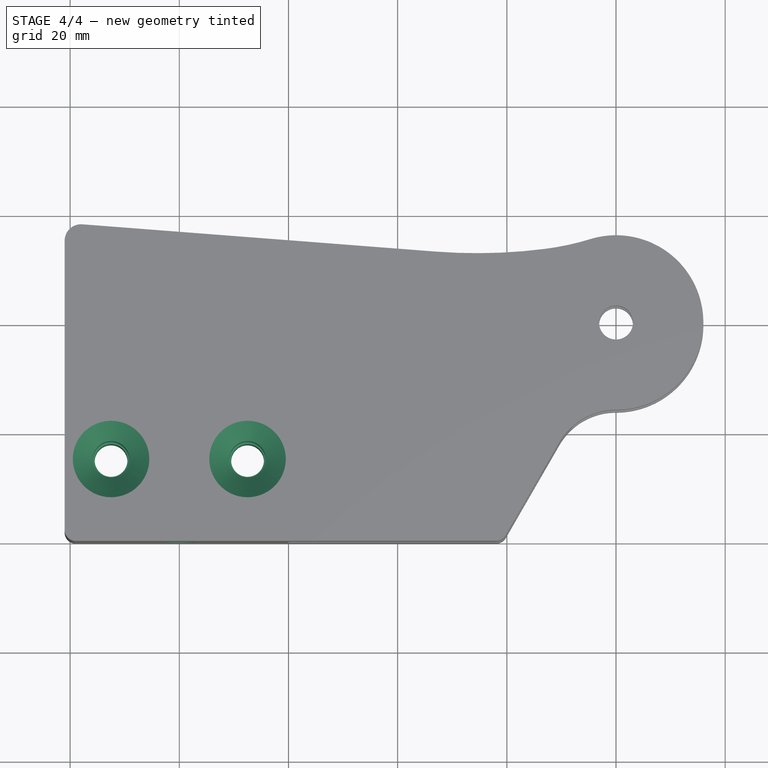
[diagram: stage 4 of 4 — top view after this stage's code; geometry added in this stage tinted green]
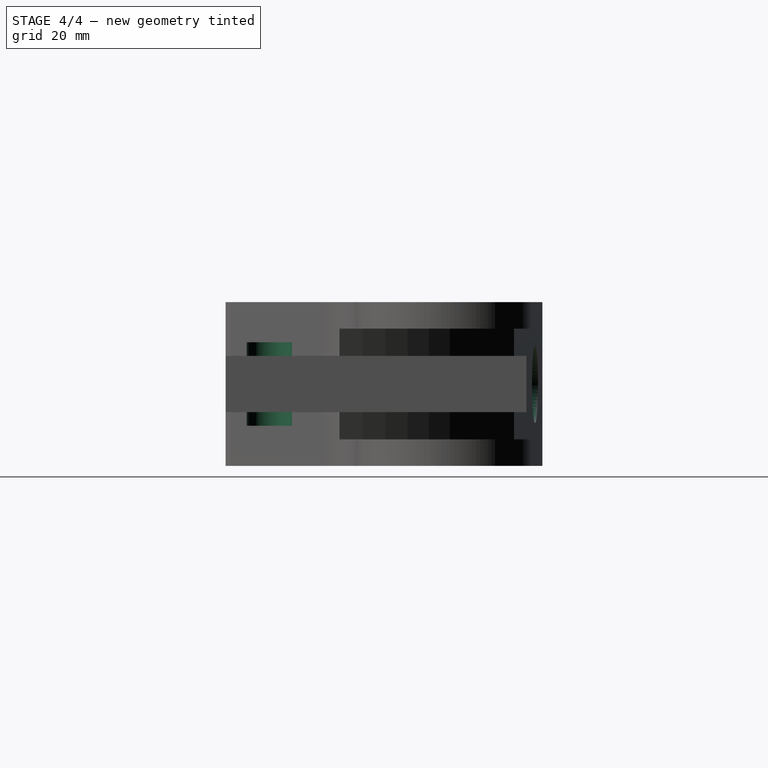
[diagram: stage 4 of 4 — right view after this stage's code; geometry added in this stage tinted green]
FEATURE [PartDesign::Hole] Hole001  label="Mounting hole"
  BaseFeature = -> Pocket003
  CustomThreadClearance = 0
  Depth = 246.474
  DepthType = 1
  Diameter = 6
  DrillForDepth = false
  DrillPoint = 1
  DrillPointAngle = 118
  HoleCutCountersinkAngle = 90
  HoleCutCustomValues = false
  HoleCutDepth = 0
  HoleCutDiameter = 17
  HoleCutType = 2
  ModelThread = false
  Profile = -> Sketch010
  Reversed = true
  Suppressed = false
  Tapered = false
  TaperedAngle = 90
  ThreadClass = 0
  ThreadDepth = 246.474
  ThreadDepthType = 0
  ThreadDirection = 0
  ThreadFit = 0
  ThreadSize = 0
  ThreadType = 0
  Threaded = false
  UseCustomThreadClearance = false
FEATURE [PartDesign::Pocket] Pocket004  label="Guide lip"
  BaseFeature = -> Hole001
  Direction = (0,0,-1)
  Length = 15.3
  Length2 = 5
  Midplane = true
  Profile = -> Sketch012
  ReferenceAxis = -> Sketch012 [N_Axis]
  Suppressed = false
  Type = 0
  expr: Length = <<Pad004>>.Length + 0.3 mm
FEATURE [PartDesign::Hole] Hole002  label="Half connector screw holes"
  BaseFeature = -> Pocket004
  CustomThreadClearance = 0
  Depth = 246.474
  DepthType = 1
  Diameter = 6
  DrillForDepth = false
  DrillPoint = 1
  DrillPointAngle = 118
  HoleCutCountersinkAngle = 90
  HoleCutCustomValues = false
  HoleCutDepth = 0
  HoleCutDiameter = 14
  HoleCutType = 2
  ModelThread = false
  Profile = -> Sketch013
  Suppressed = false
  Tapered = false
  TaperedAngle = 90
  ThreadClass = 0
  ThreadDepth = 246.474
  ThreadDepthType = 0
  ThreadDirection = 0
  ThreadFit = 0
  ThreadSize = 0
  ThreadType = 0
  Threaded = false
  UseCustomThreadClearance = false
FEATURE [PartDesign::Hole] Hole003  label="Half connector enlarger"
  BaseFeature = -> Hole002
  CustomThreadClearance = 0
  Depth = 15
  DepthType = 0
  Diameter = 6.7
  DrillForDepth = false
  DrillPoint = 1
  DrillPointAngle = 118
  HoleCutCountersinkAngle = 90
  HoleCutCustomValues = false
  HoleCutDepth = 0
  HoleCutDiameter = 6.1
  HoleCutType = 0
  ModelThread = false
  Profile = -> Sketch013
  Suppressed = false
  Tapered = false
  TaperedAngle = 90
  ThreadClass = 0
  ThreadDepth = 15
  ThreadDepthType = 0
  ThreadDirection = 0
  ThreadFit = 0
  ThreadSize = 0
  ThreadType = 0
  Threaded = false
  UseCustomThreadClearance = false
  expr: Depth = <<Pad002>>.Length / 2
FEATURE [PartDesign::Body] Body002  label="Holder"
  AllowCompound = false
  Group = -> [Sketch005,Pad002,Sketch006,Pocket001,Pocket003,Sketch008,Sketch010,Hole001,Binder001,Sketch012,Pocket004,Sketch013,Hole002,Hole003,Binder002]
  Origin = -> Origin002
  Tip = -> Hole003
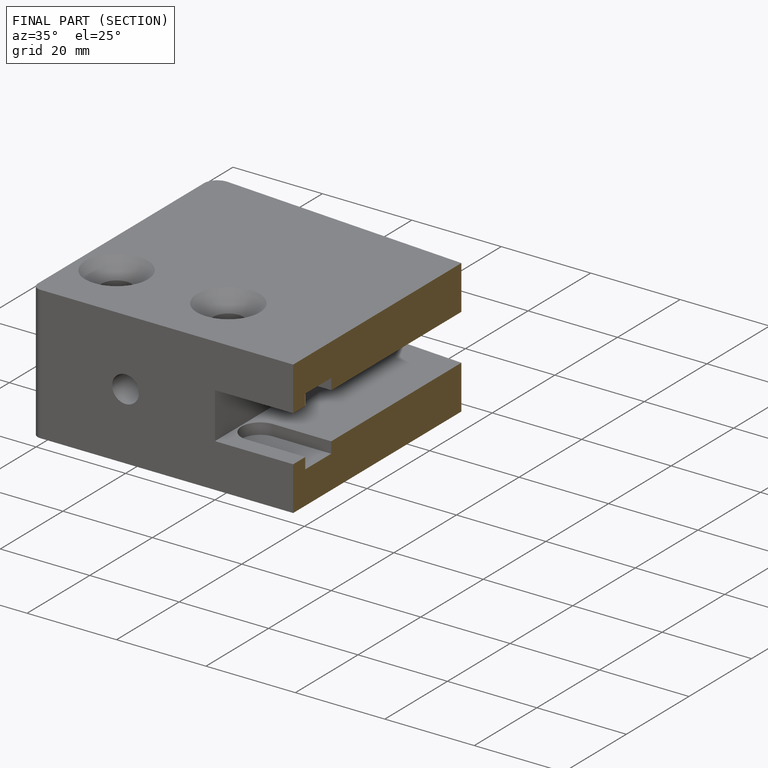
[diagram: finished part — half-section view (interior)]
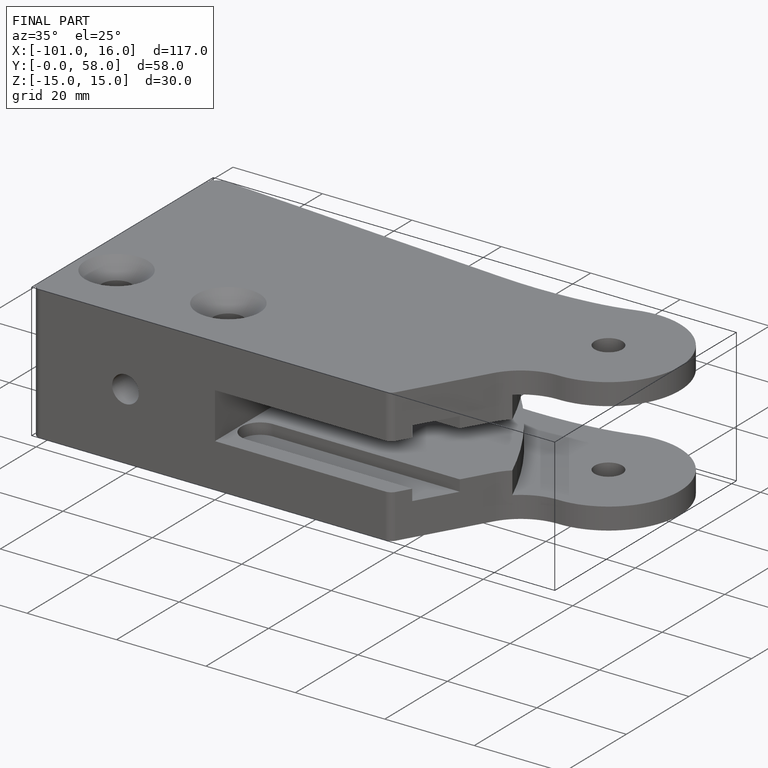
[diagram: finished part — iso view with bounding-box wireframe]
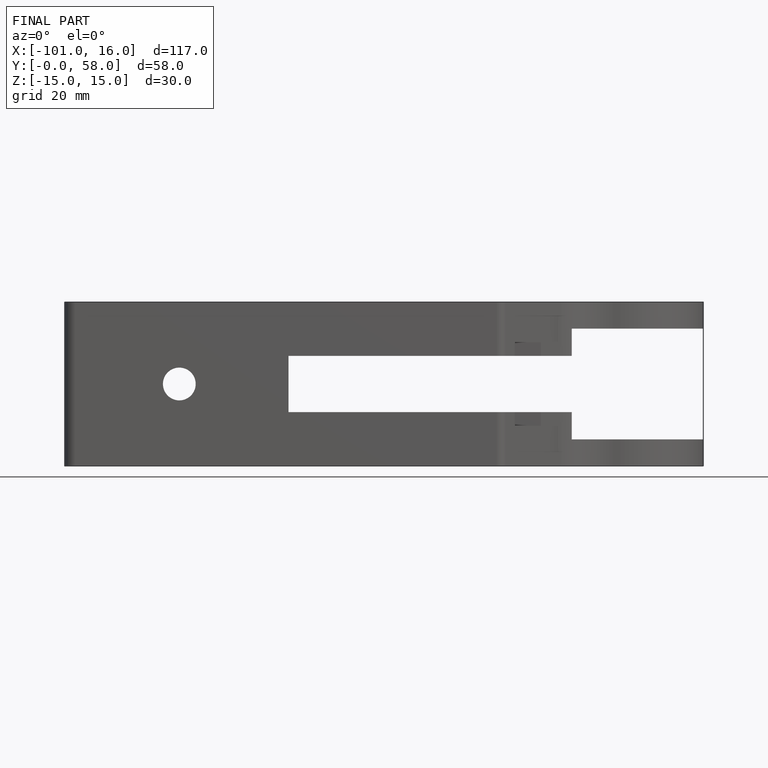
[diagram: finished part — front view with bounding-box wireframe]
